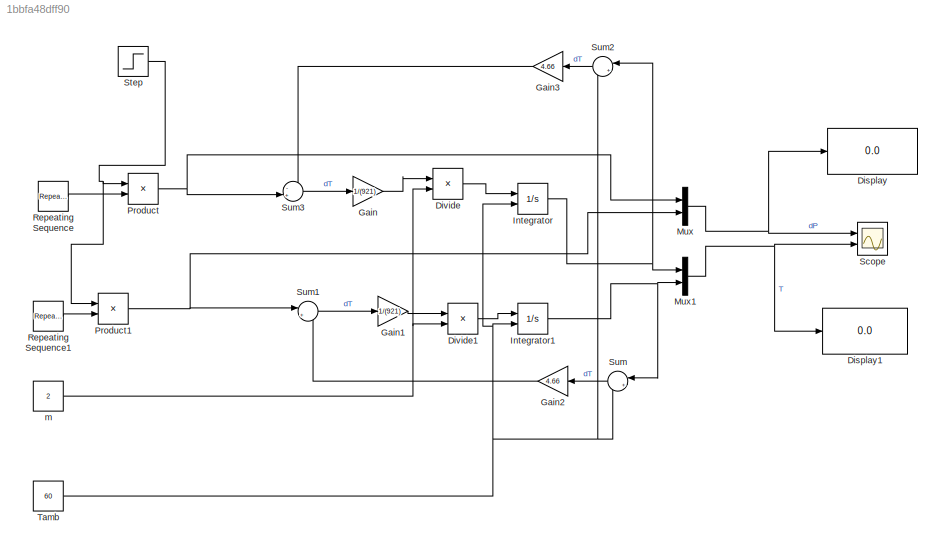
MODEL slx_1bbfa48dff90
KIND model
CONFIG AbsTol = auto
CONFIG EnableMultiTasking = off
CONFIG FixedStep = auto
CONFIG MaxStep = 1e-3
CONFIG MinStep = auto
CONFIG RelTol = 1e-3
CONFIG SampleTimeConstraint = Unconstrained
CONFIG SolverName = ode23t
CONFIG StartTime = 0.0
CONFIG StopTime = 1305
BLOCK [Display] Display
  Decimation = 1
  Ports = [1]
BLOCK [Display] Display1
  Decimation = 1
  Ports = [1]
BLOCK [Product] Divide
  Inputs = */
  Ports = [2, 1]
BLOCK [Product] Divide1
  Inputs = */
  Ports = [2, 1]
BLOCK [Gain] Gain
  Gain = 1/(921)
BLOCK [Gain] Gain1
  Gain = 1/(921)
BLOCK [Gain] Gain2
  Gain = 4.66
  NameLocation = top
BLOCK [Gain] Gain3
  Gain = 4.66
  NameLocation = top
BLOCK [Integrator] Integrator
  InitialConditionSource = external
  Ports = [2, 1]
BLOCK [Integrator] Integrator1
  InitialConditionSource = external
  Ports = [2, 1]
BLOCK [Mux] Mux
  DisplayOption = bar
  Inputs = 2
  Ports = [2, 1]
BLOCK [Mux] Mux1
  DisplayOption = bar
  Inputs = 2
  Ports = [2, 1]
BLOCK [Product] Product
  Ports = [2, 1]
BLOCK [Product] Product1
  Ports = [2, 1]
BLOCK [Reference] Repeating Sequence  REF=simulink/Sources/Repeating
Sequence
  Ports = [0, 1]
  SourceBlock = simulink/Sources/Repeating\nSequence
  SourceProductBaseCode = SL
  SourceType = Repeating table
BLOCK [Reference] Repeating Sequence1  REF=simulink/Sources/Repeating
Sequence
  Ports = [0, 1]
  SourceBlock = simulink/Sources/Repeating\nSequence
  SourceProductBaseCode = SL
  SourceType = Repeating table
BLOCK [Scope] Scope
  Floating = off
  NumInputPorts = 2
  Ports = [2]
  ScopeSpecificationString = Simulink.scopes.TimeScopeBlockCfg('CurrentConfiguration', extmgr.ConfigurationSet(extmgr.Configuration('Core','General UI',true),extmgr.Configuration('Core','Source UI',true),extmgr.Configuration('Sources','WiredSimulink',true),extmgr.Configuration('Visuals','Time Domain',true,'SerializedDisplays',{struct('MinYLimReal','-185.00000','MaxYLimReal','1665.00000','YLabelReal','','MinYLimMag',' 0.00000'...<+2069ch>
BLOCK [Step] Step
  After = 0
  Before = 1
  SampleTime = 0
  Time = 400
BLOCK [Sum] Sum
  Inputs = |+-
  NameLocation = top
  Ports = [2, 1]
BLOCK [Sum] Sum1
  Inputs = |+-
  Ports = [2, 1]
BLOCK [Sum] Sum2
  Inputs = |+-
  NameLocation = top
  Ports = [2, 1]
BLOCK [Sum] Sum3
  Inputs = -+|
  Ports = [2, 1]
BLOCK [Constant] Tamb
  Value = 60
  VectorParams1D = off
BLOCK [Constant] m
  Value = 2
LINE Divide1:1 -> Integrator1:1
LINE Divide:1 -> Integrator:1
LINE Gain1:1 -> Divide1:1
LINE Gain2:1 -> Sum1:2
LINE Gain3:1 -> Sum3:1
LINE Gain:1 -> Divide:1
NET Integrator1:1 -> Mux1:2, Sum:1
NET Integrator:1 -> Mux1:1, Sum2:1
NET Mux1:1 -> Display1:1, Scope:2
NET Mux:1 -> Display:1, Scope:1
NET Product1:1 -> Mux:2, Sum1:1
NET Product:1 -> Mux:1, Sum3:2
LINE Repeating Sequence1:1 -> Product1:2
LINE Repeating Sequence:1 -> Product:2
NET Step:1 -> Product1:1, Product:1
LINE Sum1:1 -> Gain1:1
LINE Sum2:1 -> Gain3:1
LINE Sum3:1 -> Gain:1
LINE Sum:1 -> Gain2:1
NET Tamb:1 -> Integrator1:2, Integrator:2, Sum2:2, Sum:2
NET m:1 -> Divide1:2, Divide:2
note: NET lines group one-source signal fan-out (src -> all destinations, sorted); 1:1 wires keep LINE
